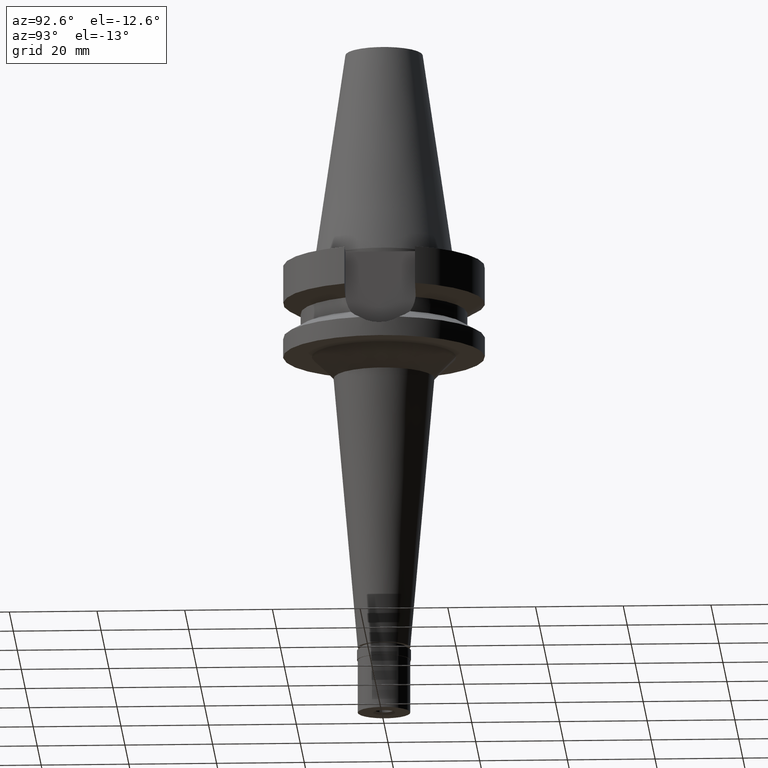
[diagram: clean part render]
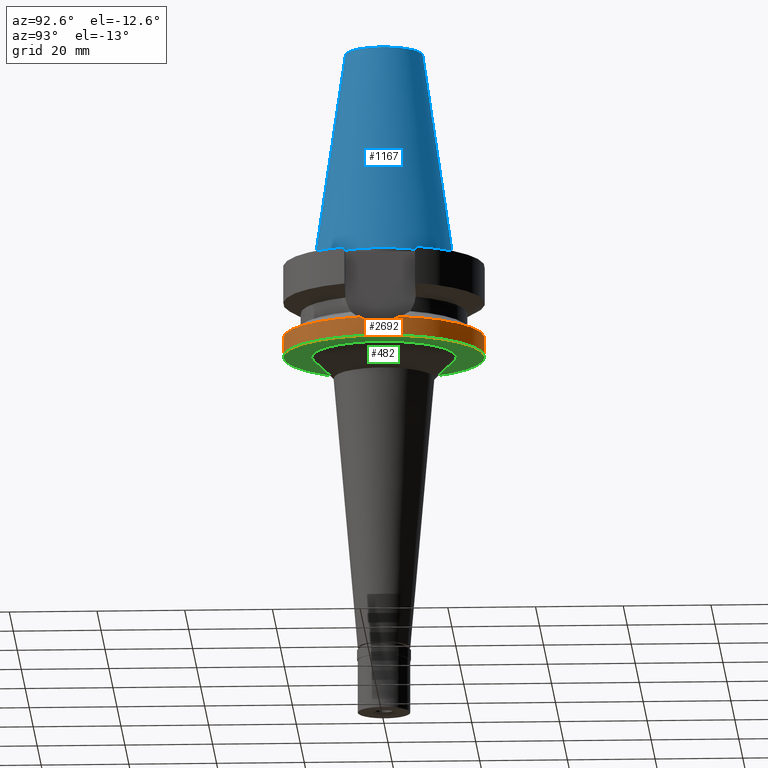
[diagram: same view with three faces highlighted in distinct colors, each labeled with its STEP entity id]
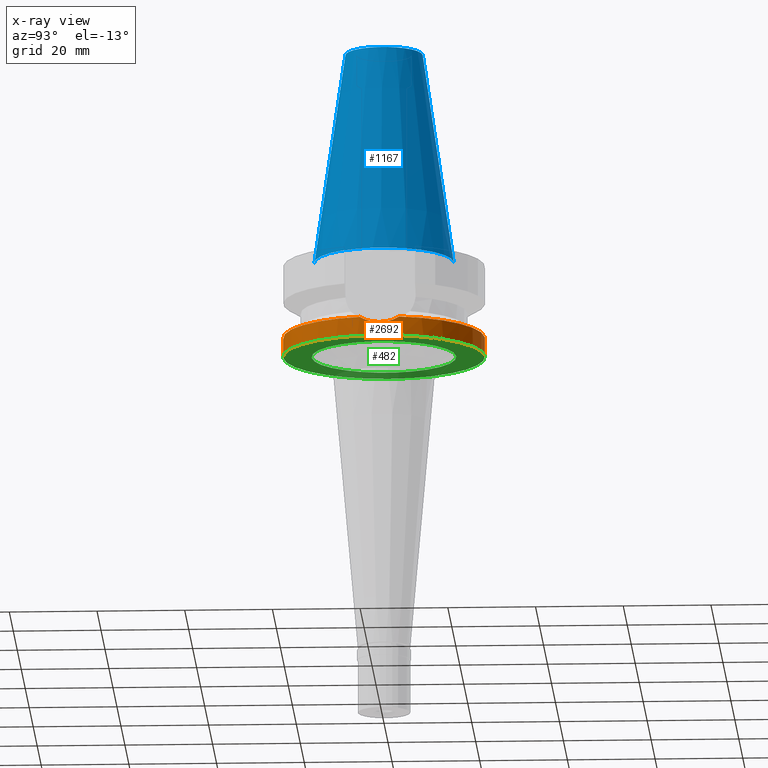
[diagram: x-ray of the same camera — body ghosted, the three highlighted faces saturated]
A machine part, auxiliary view with three faces highlighted in distinct colors.
The next image is the same camera in x-ray (body ghosted, the three faces saturated) — at least one of them is partly hidden behind the body in this view.
Their STEP definitions:

[orange] entity #2692 — the highlighted cylindrical surface (partial cylindrical patch) has radius 23 mm, axis along (0, 0, -1).
#2 = CARTESIAN_POINT ( 'NONE',  ( 0.0000000000000000000, 1.022848384030000006E-14, -17.63279163029000074 ) ) ;
#72 = CARTESIAN_POINT ( 'NONE',  ( 22.69499175063901930, -3.748172241740815647, -18.08540424547297221 ) ) ;
#101 = CARTESIAN_POINT ( 'NONE',  ( 22.87987288089665938, -2.346341797047436728, -18.65047434167048834 ) ) ;
#136 = CARTESIAN_POINT ( 'NONE',  ( 0.0000000000000000000, -23.00000000000000000, -17.63279163029000074 ) ) ;
#166 = LINE ( 'NONE', #2249, #1497 ) ;
#172 = CARTESIAN_POINT ( 'NONE',  ( 22.88312644180740207, 2.314397374710333022, -18.66013545452877764 ) ) ;
#182 = CARTESIAN_POINT ( 'NONE',  ( 22.55786346208000026, 4.488072640470000430, -17.63279163029000074 ) ) ;
#198 = DIRECTION ( 'NONE',  ( 0.0000000000000000000, 2.277793377031000010E-14, -1.000000000000000000 ) ) ;
#313 = EDGE_CURVE ( 'NONE', #483, #568, #2306, .T. ) ;
#333 = CARTESIAN_POINT ( 'NONE',  ( 22.91429733645878031, 1.985733362394755730, -18.75237216571427368 ) ) ;
#350 = ORIENTED_EDGE ( 'NONE', *, *, #1686, .T. ) ;
#395 = ORIENTED_EDGE ( 'NONE', *, *, #313, .F. ) ;
#401 = DIRECTION ( 'NONE',  ( 0.9807766722643714852, -0.1951335930638943839, 0.0000000000000000000 ) ) ;
#483 = VERTEX_POINT ( 'NONE', #1851 ) ;
#533 = CARTESIAN_POINT ( 'NONE',  ( 22.86635761858875426, -2.475005762107148399, -18.61031445782157334 ) ) ;
#548 = CARTESIAN_POINT ( 'NONE',  ( 22.55786346208000026, -4.488072640470000430, -17.63279163029000074 ) ) ;
#554 = VERTEX_POINT ( 'NONE', #1565 ) ;
#568 = VERTEX_POINT ( 'NONE', #939 ) ;
#575 = VERTEX_POINT ( 'NONE', #2935 ) ;
#576 = ORIENTED_EDGE ( 'NONE', *, *, #2071, .T. ) ;
#577 = LINE ( 'NONE', #2430, #1947 ) ;
#595 = CARTESIAN_POINT ( 'NONE',  ( 0.0000000000000000000, 1.908856965831000054E-14, 55.87000000000000455 ) ) ;
#623 = CARTESIAN_POINT ( 'NONE',  ( 23.00000000000000000, 0.0000000000000000000, -19.00000000000000000 ) ) ;
#670 = EDGE_CURVE ( 'NONE', #575, #1607, #712, .T. ) ;
#712 = CIRCLE ( 'NONE', #2661, 23.00000000000000000 ) ;
#800 = CARTESIAN_POINT ( 'NONE',  ( 23.00000000000000000, 0.3819689728180153399, -19.00000000000000355 ) ) ;
#820 = DIRECTION ( 'NONE',  ( 0.0000000000000000000, 0.0000000000000000000, -1.000000000000000000 ) ) ;
#843 = CIRCLE ( 'NONE', #2799, 23.00000000000000000 ) ;
#867 = EDGE_CURVE ( 'NONE', #483, #1988, #1179, .T. ) ;
#888 = EDGE_CURVE ( 'NONE', #568, #1607, #2207, .T. ) ;
#905 = EDGE_CURVE ( 'NONE', #575, #554, #577, .T. ) ;
#909 = EDGE_LOOP ( 'NONE', ( #2244, #350, #576, #1696, #1882, #2683, #395 ) ) ;
#939 = CARTESIAN_POINT ( 'NONE',  ( 23.00000000000000000, 0.0000000000000000000, -19.00000000000000000 ) ) ;
#978 = CARTESIAN_POINT ( 'NONE',  ( 22.77603792338097222, -3.203302028792997191, -18.33792449456192841 ) ) ;
#1006 = CARTESIAN_POINT ( 'NONE',  ( 0.0000000000000000000, 1.908856965831000054E-14, -22.00000000000000000 ) ) ;
#1017 = CARTESIAN_POINT ( 'NONE',  ( 22.70468464517827201, 3.750122864024259428, -18.12838873774591875 ) ) ;
#1063 = CYLINDRICAL_SURFACE ( 'NONE', #1706, 23.00000000000000000 ) ;
#1066 = CARTESIAN_POINT ( 'NONE',  ( 22.88081948797537990, -2.337103549849427253, -18.65328543976839271 ) ) ;
#1080 = CARTESIAN_POINT ( 'NONE',  ( 22.89870805267842613, 2.155553977226829510, -18.70632175363175165 ) ) ;
#1179 = CIRCLE ( 'NONE', #2374, 23.00000000000001066 ) ;
#1199 = CARTESIAN_POINT ( 'NONE',  ( 22.63127206051003171, -4.119107770039512673, -17.88058345620347822 ) ) ;
#1246 = DIRECTION ( 'NONE',  ( 0.0000000000000000000, -2.603192430893000129E-14, -1.000000000000000000 ) ) ;
#1261 = CARTESIAN_POINT ( 'NONE',  ( 22.88691049740376471, 2.276661173171203423, -18.67136472499475275 ) ) ;
#1291 = CARTESIAN_POINT ( 'NONE',  ( 0.0000000000000000000, -23.00000000000000000, -22.00000000000000000 ) ) ;
#1406 = VERTEX_POINT ( 'NONE', #1291 ) ;
#1436 = CARTESIAN_POINT ( 'NONE',  ( 22.87766922327199737, -2.367715255659479823, -18.64392938513310227 ) ) ;
#1455 = CARTESIAN_POINT ( 'NONE',  ( 22.80063108721970622, -3.023553602465301804, -18.41300237432865217 ) ) ;
#1497 = VECTOR ( 'NONE', #198, 1000.000000000000000 ) ;
#1503 = FACE_OUTER_BOUND ( 'NONE', #909, .T. ) ;
#1508 = CARTESIAN_POINT ( 'NONE',  ( 23.00000000000000000, -0.7639550462541035980, -19.00000000000000000 ) ) ;
#1565 = CARTESIAN_POINT ( 'NONE',  ( 0.0000000000000000000, 23.00000000000000000, -22.00000000000000000 ) ) ;
#1607 = VERTEX_POINT ( 'NONE', #182 ) ;
#1635 = DIRECTION ( 'NONE',  ( 0.0000000000000000000, 0.0000000000000000000, -1.000000000000000000 ) ) ;
#1672 = DIRECTION ( 'NONE',  ( 0.0000000000000000000, 0.0000000000000000000, 1.000000000000000000 ) ) ;
#1686 = EDGE_CURVE ( 'NONE', #1988, #1406, #166, .T. ) ;
#1696 = ORIENTED_EDGE ( 'NONE', *, *, #905, .F. ) ;
#1698 = CARTESIAN_POINT ( 'NONE',  ( 22.99017030382322702, 0.7695635905563573687, -18.97276805498581354 ) ) ;
#1706 = AXIS2_PLACEMENT_3D ( 'NONE', #595, #820, #1730 ) ;
#1730 = DIRECTION ( 'NONE',  ( 0.0000000000000000000, -1.000000000000000000, 0.0000000000000000000 ) ) ;
#1851 = CARTESIAN_POINT ( 'NONE',  ( 22.55786346208000026, -4.488072640470000430, -17.63279163029000074 ) ) ;
#1882 = ORIENTED_EDGE ( 'NONE', *, *, #670, .T. ) ;
#1926 = DIRECTION ( 'NONE',  ( 0.0000000000000000000, -1.000000000000000000, 0.0000000000000000000 ) ) ;
#1936 = CARTESIAN_POINT ( 'NONE',  ( 22.81274470644451924, 3.007178026309876628, -18.45113452037933044 ) ) ;
#1947 = VECTOR ( 'NONE', #1246, 1000.000000000000000 ) ;
#1951 = CARTESIAN_POINT ( 'NONE',  ( 22.94839409507195427, 1.547943185091792850, -18.85228501132461076 ) ) ;
#1988 = VERTEX_POINT ( 'NONE', #136 ) ;
#2071 = EDGE_CURVE ( 'NONE', #1406, #554, #843, .T. ) ;
#2099 = DIRECTION ( 'NONE',  ( 0.0000000000000000000, 1.000000000000000000, 0.0000000000000000000 ) ) ;
#2147 = CARTESIAN_POINT ( 'NONE',  ( 22.87433535136145579, -2.399816750537187904, -18.63402627222257379 ) ) ;
#2207 = B_SPLINE_CURVE_WITH_KNOTS ( 'NONE', 3,
 ( #623, #800, #1698, #2649, #1951, #2604, #333, #1080, #2228, #1261, #2386, #172, #1936, #1017, #2902 ),
 .UNSPECIFIED., .F., .F.,
 ( 4, 2, 2, 1, 1, 1, 2, 2, 4 ),
 ( 0.0000000000000000000, 0.2500000000000139888, 0.3750000000000207612, 0.4375000000000241474, 0.4687500000000258682, 0.4843750000000263123, 0.4921875000000264233, 0.5000000000000265343, 1.000000000000000000 ),
 .UNSPECIFIED. ) ;
#2228 = CARTESIAN_POINT ( 'NONE',  ( 22.89051023965600962, 2.240348351789950954, -18.68204066349707304 ) ) ;
#2244 = ORIENTED_EDGE ( 'NONE', *, *, #867, .T. ) ;
#2249 = CARTESIAN_POINT ( 'NONE',  ( 0.0000000000000000000, -23.00000000000000000, -17.63279163029000074 ) ) ;
#2306 = B_SPLINE_CURVE_WITH_KNOTS ( 'NONE', 3,
 ( #548, #1199, #72, #978, #1455, #2371, #2576, #533, #2147, #1436, #101, #1066, #2668, #1508, #2874 ),
 .UNSPECIFIED., .F., .F.,
 ( 4, 2, 2, 1, 1, 1, 2, 2, 4 ),
 ( 0.0000000000000000000, 0.2499999999999993339, 0.3749999999999991118, 0.4374999999999990008, 0.4687499999999984457, 0.4843749999999981681, 0.4921874999999983347, 0.4999999999999985567, 1.000000000000000000 ),
 .UNSPECIFIED. ) ;
#2371 = CARTESIAN_POINT ( 'NONE',  ( 22.83388749236490156, -2.758148477837719437, -18.51333670946596399 ) ) ;
#2374 = AXIS2_PLACEMENT_3D ( 'NONE', #2444, #2664, #401 ) ;
#2386 = CARTESIAN_POINT ( 'NONE',  ( 22.88449147061027134, 2.300863271024916834, -18.66418741811910920 ) ) ;
#2430 = CARTESIAN_POINT ( 'NONE',  ( 0.0000000000000000000, 23.00000000000000000, -17.63279163029000074 ) ) ;
#2444 = CARTESIAN_POINT ( 'NONE',  ( 0.0000000000000000000, 1.022848384030000006E-14, -17.63279163029000074 ) ) ;
#2576 = CARTESIAN_POINT ( 'NONE',  ( 22.84960735978427948, -2.626496222809528103, -18.56043422946123300 ) ) ;
#2604 = CARTESIAN_POINT ( 'NONE',  ( 22.92627727867422038, 1.839863911004575359, -18.78755924475868611 ) ) ;
#2649 = CARTESIAN_POINT ( 'NONE',  ( 22.96068121529290451, 1.353089350188771300, -18.88790167842915224 ) ) ;
#2661 = AXIS2_PLACEMENT_3D ( 'NONE', #2, #1635, #2099 ) ;
#2664 = DIRECTION ( 'NONE',  ( 0.0000000000000000000, 0.0000000000000000000, -1.000000000000000000 ) ) ;
#2668 = CARTESIAN_POINT ( 'NONE',  ( 22.96068271768259805, -1.551010906439837633, -18.89043203382650304 ) ) ;
#2683 = ORIENTED_EDGE ( 'NONE', *, *, #888, .F. ) ;
#2692 = ADVANCED_FACE ( 'NONE', ( #1503 ), #1063, .T. ) ;
#2799 = AXIS2_PLACEMENT_3D ( 'NONE', #1006, #1672, #1926 ) ;
#2874 = CARTESIAN_POINT ( 'NONE',  ( 23.00000000000000000, 0.0000000000000000000, -19.00000000000000000 ) ) ;
#2902 = CARTESIAN_POINT ( 'NONE',  ( 22.55786346208000026, 4.488072640470000430, -17.63279163029000074 ) ) ;
#2935 = CARTESIAN_POINT ( 'NONE',  ( 0.0000000000000000000, 23.00000000000000000, -17.63279163029000074 ) ) ;

[blue] entity #1167 — the highlighted conical surface has half-angle 8.297 deg.
#90 = VERTEX_POINT ( 'NONE', #450 ) ;
#100 = CARTESIAN_POINT ( 'NONE',  ( 0.0000000000000000000, 1.521011324540999938E-14, -3.694822225953000089E-13 ) ) ;
#335 = DIRECTION ( 'NONE',  ( 0.0000000000000000000, 0.0000000000000000000, -1.000000000000000000 ) ) ;
#450 = CARTESIAN_POINT ( 'NONE',  ( 0.0000000000000000000, -8.816791732783000768, 48.39999999999999858 ) ) ;
#540 = LINE ( 'NONE', #2136, #2496 ) ;
#832 = CONICAL_SURFACE ( 'NONE', #1352, 12.34589586639000025, 0.1448099680379422438 ) ;
#835 = EDGE_LOOP ( 'NONE', ( #2269, #2700, #1468, #1030 ) ) ;
#1002 = DIRECTION ( 'NONE',  ( 0.0000000000000000000, 1.000000000000000000, 0.0000000000000000000 ) ) ;
#1030 = ORIENTED_EDGE ( 'NONE', *, *, #1402, .F. ) ;
#1112 = CARTESIAN_POINT ( 'NONE',  ( 0.0000000000000000000, 15.87500000000000000, -1.598721155459999993E-13 ) ) ;
#1122 = CARTESIAN_POINT ( 'NONE',  ( 0.0000000000000000000, 1.521011324540999938E-14, 24.19999999999999929 ) ) ;
#1124 = AXIS2_PLACEMENT_3D ( 'NONE', #100, #335, #1002 ) ;
#1167 = ADVANCED_FACE ( 'NONE', ( #2715 ), #832, .T. ) ;
#1352 = AXIS2_PLACEMENT_3D ( 'NONE', #1122, #1387, #2530 ) ;
#1387 = DIRECTION ( 'NONE',  ( 0.0000000000000000000, 0.0000000000000000000, -1.000000000000000000 ) ) ;
#1402 = EDGE_CURVE ( 'NONE', #2800, #2121, #540, .T. ) ;
#1423 = DIRECTION ( 'NONE',  ( 0.0000000000000000000, -0.1443043893539925626, -0.9895333461855498891 ) ) ;
#1468 = ORIENTED_EDGE ( 'NONE', *, *, #2592, .F. ) ;
#1909 = LINE ( 'NONE', #2823, #2280 ) ;
#1995 = CIRCLE ( 'NONE', #2190, 8.816791732783000768 ) ;
#2109 = CARTESIAN_POINT ( 'NONE',  ( 0.0000000000000000000, 8.816791732783000768, 48.39999999999999858 ) ) ;
#2121 = VERTEX_POINT ( 'NONE', #1112 ) ;
#2136 = CARTESIAN_POINT ( 'NONE',  ( 0.0000000000000000000, 8.816791732783000768, 48.39999999999999858 ) ) ;
#2182 = EDGE_CURVE ( 'NONE', #2800, #90, #1995, .T. ) ;
#2190 = AXIS2_PLACEMENT_3D ( 'NONE', #2436, #2907, #2702 ) ;
#2269 = ORIENTED_EDGE ( 'NONE', *, *, #2182, .T. ) ;
#2280 = VECTOR ( 'NONE', #1423, 1000.000000000000114 ) ;
#2425 = DIRECTION ( 'NONE',  ( 0.0000000000000000000, 0.1443043893539925626, -0.9895333461855498891 ) ) ;
#2436 = CARTESIAN_POINT ( 'NONE',  ( 0.0000000000000000000, 1.521011324540999938E-14, 48.39999999999999858 ) ) ;
#2445 = CARTESIAN_POINT ( 'NONE',  ( 0.0000000000000000000, -15.87500000000000000, -1.598721155459999993E-13 ) ) ;
#2496 = VECTOR ( 'NONE', #2425, 1000.000000000000114 ) ;
#2527 = EDGE_CURVE ( 'NONE', #90, #2631, #1909, .T. ) ;
#2530 = DIRECTION ( 'NONE',  ( 0.0000000000000000000, -1.000000000000000000, 0.0000000000000000000 ) ) ;
#2592 = EDGE_CURVE ( 'NONE', #2121, #2631, #2956, .T. ) ;
#2631 = VERTEX_POINT ( 'NONE', #2445 ) ;
#2700 = ORIENTED_EDGE ( 'NONE', *, *, #2527, .T. ) ;
#2702 = DIRECTION ( 'NONE',  ( 0.0000000000000000000, 1.000000000000000000, 0.0000000000000000000 ) ) ;
#2715 = FACE_OUTER_BOUND ( 'NONE', #835, .T. ) ;
#2800 = VERTEX_POINT ( 'NONE', #2109 ) ;
#2823 = CARTESIAN_POINT ( 'NONE',  ( 0.0000000000000000000, -8.816791732783000768, 48.39999999999999858 ) ) ;
#2907 = DIRECTION ( 'NONE',  ( 0.0000000000000000000, 0.0000000000000000000, -1.000000000000000000 ) ) ;
#2956 = CIRCLE ( 'NONE', #1124, 15.87500000000000000 ) ;

[green] entity #482 — the highlighted planar face has unit normal (0, 0, -1).
#248 = DIRECTION ( 'NONE',  ( 0.0000000000000000000, 0.0000000000000000000, -1.000000000000000000 ) ) ;
#429 = CARTESIAN_POINT ( 'NONE',  ( 0.0000000000000000000, 1.908856965831000054E-14, -22.00000000000000000 ) ) ;
#482 = ADVANCED_FACE ( 'NONE', ( #1774, #2684 ), #643, .T. ) ;
#519 = EDGE_CURVE ( 'NONE', #578, #682, #2291, .T. ) ;
#523 = AXIS2_PLACEMENT_3D ( 'NONE', #1553, #2461, #1251 ) ;
#534 = ORIENTED_EDGE ( 'NONE', *, *, #2071, .F. ) ;
#554 = VERTEX_POINT ( 'NONE', #1565 ) ;
#578 = VERTEX_POINT ( 'NONE', #1623 ) ;
#643 = PLANE ( 'NONE',  #523 ) ;
#674 = CARTESIAN_POINT ( 'NONE',  ( 0.0000000000000000000, 0.0000000000000000000, -22.00000000000000000 ) ) ;
#682 = VERTEX_POINT ( 'NONE', #1890 ) ;
#843 = CIRCLE ( 'NONE', #2799, 23.00000000000000000 ) ;
#881 = CARTESIAN_POINT ( 'NONE',  ( 0.0000000000000000000, 0.0000000000000000000, -22.00000000000000000 ) ) ;
#895 = ORIENTED_EDGE ( 'NONE', *, *, #999, .F. ) ;
#903 = CIRCLE ( 'NONE', #1616, 23.00000000000000000 ) ;
#999 = EDGE_CURVE ( 'NONE', #554, #1406, #903, .T. ) ;
#1006 = CARTESIAN_POINT ( 'NONE',  ( 0.0000000000000000000, 1.908856965831000054E-14, -22.00000000000000000 ) ) ;
#1251 = DIRECTION ( 'NONE',  ( 0.0000000000000000000, -1.000000000000000000, 0.0000000000000000000 ) ) ;
#1291 = CARTESIAN_POINT ( 'NONE',  ( 0.0000000000000000000, -23.00000000000000000, -22.00000000000000000 ) ) ;
#1317 = DIRECTION ( 'NONE',  ( 0.0000000000000000000, 0.0000000000000000000, -1.000000000000000000 ) ) ;
#1406 = VERTEX_POINT ( 'NONE', #1291 ) ;
#1522 = CIRCLE ( 'NONE', #2329, 16.49428806942999870 ) ;
#1553 = CARTESIAN_POINT ( 'NONE',  ( 0.0000000000000000000, 0.0000000000000000000, -22.00000000000000000 ) ) ;
#1565 = CARTESIAN_POINT ( 'NONE',  ( 0.0000000000000000000, 23.00000000000000000, -22.00000000000000000 ) ) ;
#1616 = AXIS2_PLACEMENT_3D ( 'NONE', #429, #1820, #2458 ) ;
#1623 = CARTESIAN_POINT ( 'NONE',  ( 0.0000000000000000000, 16.49428806942999870, -22.00000000000000000 ) ) ;
#1650 = EDGE_LOOP ( 'NONE', ( #895, #534 ) ) ;
#1672 = DIRECTION ( 'NONE',  ( 0.0000000000000000000, 0.0000000000000000000, 1.000000000000000000 ) ) ;
#1767 = AXIS2_PLACEMENT_3D ( 'NONE', #674, #248, #2059 ) ;
#1774 = FACE_OUTER_BOUND ( 'NONE', #1650, .T. ) ;
#1820 = DIRECTION ( 'NONE',  ( 0.0000000000000000000, 0.0000000000000000000, 1.000000000000000000 ) ) ;
#1890 = CARTESIAN_POINT ( 'NONE',  ( 0.0000000000000000000, -16.49428806942999870, -22.00000000000000000 ) ) ;
#1926 = DIRECTION ( 'NONE',  ( 0.0000000000000000000, -1.000000000000000000, 0.0000000000000000000 ) ) ;
#1932 = EDGE_LOOP ( 'NONE', ( #2588, #2297 ) ) ;
#2059 = DIRECTION ( 'NONE',  ( 0.0000000000000000000, 1.000000000000000000, 0.0000000000000000000 ) ) ;
#2071 = EDGE_CURVE ( 'NONE', #1406, #554, #843, .T. ) ;
#2160 = EDGE_CURVE ( 'NONE', #682, #578, #1522, .T. ) ;
#2246 = DIRECTION ( 'NONE',  ( 0.0000000000000000000, -1.000000000000000000, 0.0000000000000000000 ) ) ;
#2291 = CIRCLE ( 'NONE', #1767, 16.49428806942999870 ) ;
#2297 = ORIENTED_EDGE ( 'NONE', *, *, #2160, .F. ) ;
#2329 = AXIS2_PLACEMENT_3D ( 'NONE', #881, #1317, #2246 ) ;
#2458 = DIRECTION ( 'NONE',  ( 0.0000000000000000000, 1.000000000000000000, 0.0000000000000000000 ) ) ;
#2461 = DIRECTION ( 'NONE',  ( 0.0000000000000000000, 0.0000000000000000000, -1.000000000000000000 ) ) ;
#2588 = ORIENTED_EDGE ( 'NONE', *, *, #519, .F. ) ;
#2684 = FACE_BOUND ( 'NONE', #1932, .T. ) ;
#2799 = AXIS2_PLACEMENT_3D ( 'NONE', #1006, #1672, #1926 ) ;